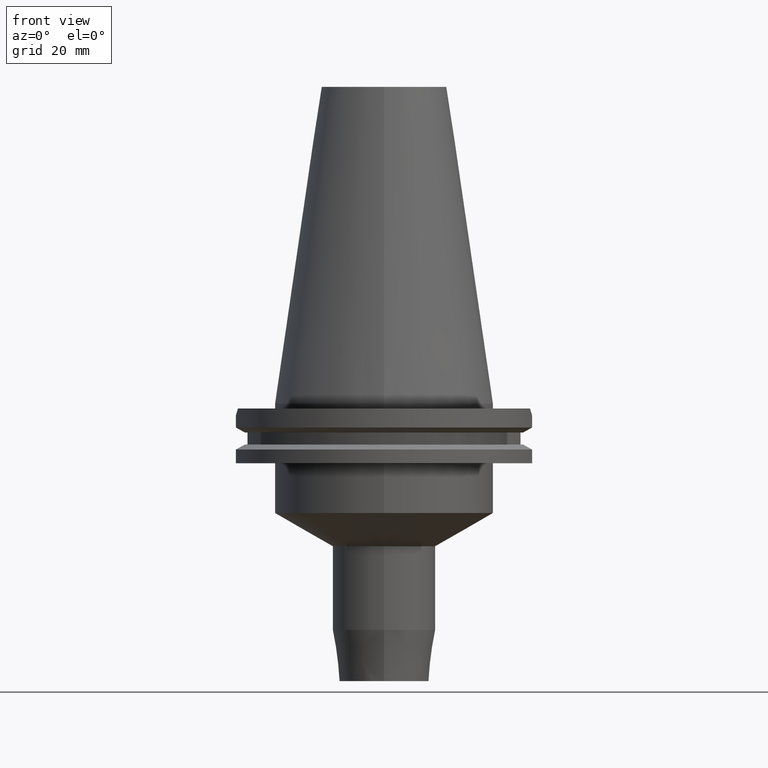
[diagram: clean part render]
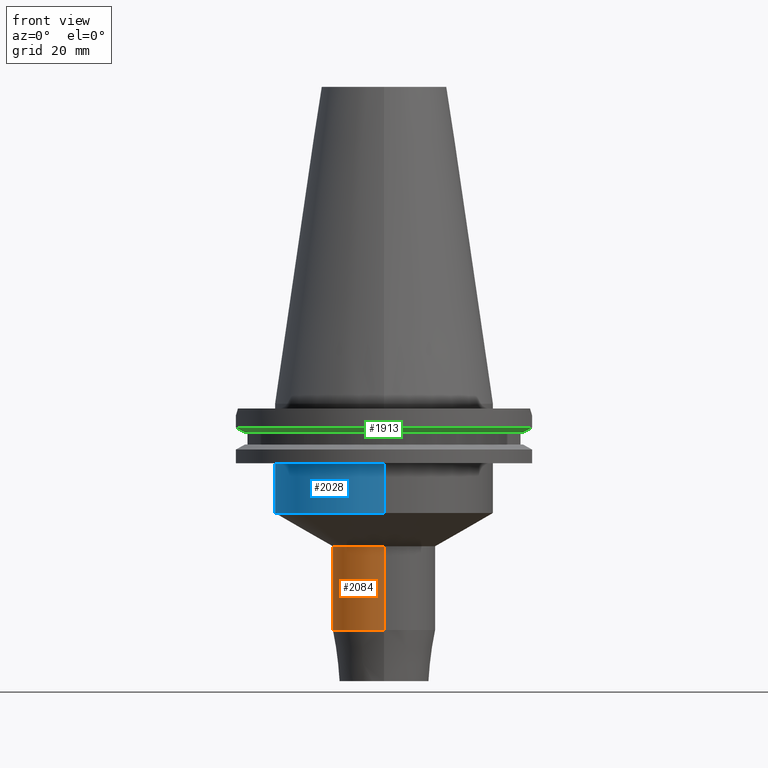
[diagram: same view with three faces highlighted in distinct colors, each labeled with its STEP entity id]
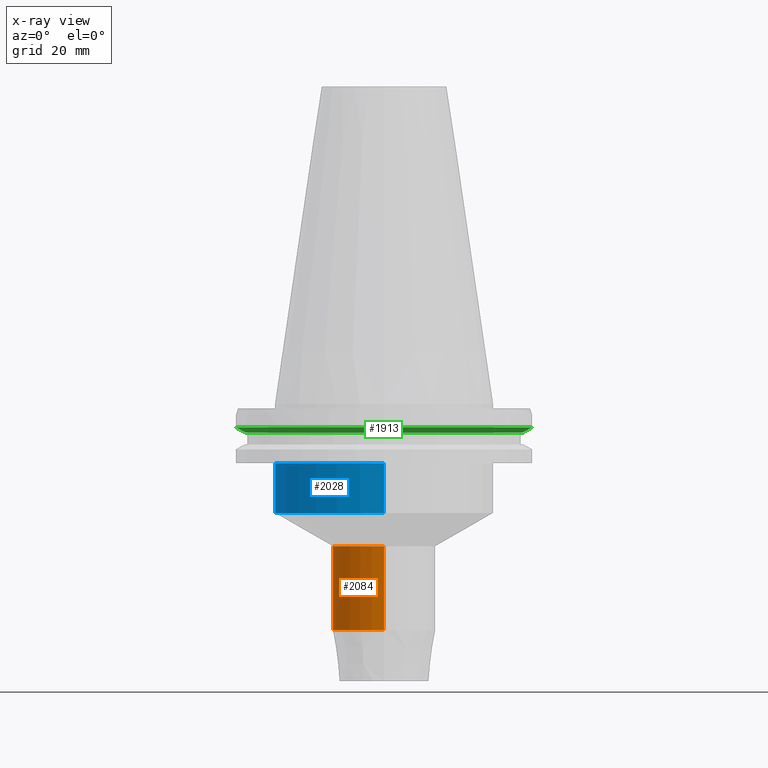
[diagram: x-ray of the same camera — body ghosted, the three highlighted faces saturated]
A machine part, front view with three faces highlighted in distinct colors.
The next image is the same camera in x-ray (body ghosted, the three faces saturated) — at least one of them is partly hidden behind the body in this view.
Their STEP definitions:

[orange] entity #2084 — the highlighted cylindrical surface (partial cylindrical patch) has radius 16.5 mm, axis along (0, 0, -1).
#900=CARTESIAN_POINT('',(0.E0,0.E0,-4.567200794362E1));
#901=DIRECTION('',(0.E0,0.E0,-1.E0));
#902=DIRECTION('',(0.E0,-1.E0,0.E0));
#903=AXIS2_PLACEMENT_3D('',#900,#901,#902);
#908=DIRECTION('',(0.E0,0.E0,-1.E0));
#909=VECTOR('',#908,2.686293982051E1);
#910=CARTESIAN_POINT('',(0.E0,-1.65E1,-4.567200794362E1));
#911=LINE('',#910,#909);
#915=DIRECTION('',(0.E0,0.E0,-1.E0));
#916=VECTOR('',#915,2.686293982051E1);
#917=CARTESIAN_POINT('',(0.E0,1.65E1,-4.567200794362E1));
#918=LINE('',#917,#916);
#937=CARTESIAN_POINT('',(0.E0,0.E0,-7.253494776413E1));
#938=DIRECTION('',(0.E0,0.E0,1.E0));
#939=DIRECTION('',(0.E0,1.E0,0.E0));
#940=AXIS2_PLACEMENT_3D('',#937,#938,#939);
#1264=CARTESIAN_POINT('',(0.E0,1.65E1,-7.253494776413E1));
#1265=VERTEX_POINT('',#1264);
#1266=CARTESIAN_POINT('',(0.E0,-1.65E1,-7.253494776413E1));
#1267=VERTEX_POINT('',#1266);
#1268=CARTESIAN_POINT('',(0.E0,1.65E1,-4.567200794362E1));
#1269=VERTEX_POINT('',#1268);
#1270=CARTESIAN_POINT('',(0.E0,-1.65E1,-4.567200794362E1));
#1271=VERTEX_POINT('',#1270);
#2070=CARTESIAN_POINT('',(0.E0,2.585535554700E-14,1.11125E2));
#2071=DIRECTION('',(0.E0,0.E0,-1.E0));
#2072=DIRECTION('',(0.E0,-1.E0,0.E0));
#2073=AXIS2_PLACEMENT_3D('',#2070,#2071,#2072);
#2074=CYLINDRICAL_SURFACE('',#2073,1.65E1);
#2076=ORIENTED_EDGE('',*,*,#2075,.F.);
#2077=ORIENTED_EDGE('',*,*,#2065,.F.);
#2079=ORIENTED_EDGE('',*,*,#2078,.T.);
#2081=ORIENTED_EDGE('',*,*,#2080,.F.);
#2082=EDGE_LOOP('',(#2076,#2077,#2079,#2081));
#2083=FACE_OUTER_BOUND('',#2082,.F.);
#904=CIRCLE('',#903,1.65E1);
#941=CIRCLE('',#940,1.65E1);
#2065=EDGE_CURVE('',#1271,#1269,#904,.T.);
#2075=EDGE_CURVE('',#1269,#1265,#918,.T.);
#2078=EDGE_CURVE('',#1271,#1267,#911,.T.);
#2080=EDGE_CURVE('',#1265,#1267,#941,.T.);
#2084=ADVANCED_FACE('',(#2083),#2074,.T.);

[blue] entity #2028 — the highlighted cylindrical surface (partial cylindrical patch) has radius 34.925 mm, axis along (0, 0, -1).
#251=CARTESIAN_POINT('',(0.E0,2.585535554700E-14,-1.905E1));
#252=DIRECTION('',(0.E0,0.E0,-1.E0));
#253=DIRECTION('',(0.E0,-1.E0,0.E0));
#254=AXIS2_PLACEMENT_3D('',#251,#252,#253);
#848=DIRECTION('',(0.E0,2.361051096883E-14,-1.E0));
#849=VECTOR('',#848,1.595E1);
#850=CARTESIAN_POINT('',(0.E0,-3.4925E1,-1.905E1));
#851=LINE('',#850,#849);
#855=DIRECTION('',(0.E0,-2.450147364690E-14,-1.E0));
#856=VECTOR('',#855,1.595E1);
#857=CARTESIAN_POINT('',(0.E0,3.4925E1,-1.905E1));
#858=LINE('',#857,#856);
#885=CARTESIAN_POINT('',(0.E0,0.E0,-3.5E1));
#886=DIRECTION('',(0.E0,0.E0,1.E0));
#887=DIRECTION('',(0.E0,1.E0,0.E0));
#888=AXIS2_PLACEMENT_3D('',#885,#886,#887);
#1272=CARTESIAN_POINT('',(0.E0,3.4925E1,-3.5E1));
#1273=VERTEX_POINT('',#1272);
#1274=CARTESIAN_POINT('',(0.E0,-3.4925E1,-3.5E1));
#1275=VERTEX_POINT('',#1274);
#1276=CARTESIAN_POINT('',(0.E0,3.4925E1,-1.905E1));
#1277=VERTEX_POINT('',#1276);
#1278=CARTESIAN_POINT('',(0.E0,-3.4925E1,-1.905E1));
#1279=VERTEX_POINT('',#1278);
#2014=CARTESIAN_POINT('',(0.E0,2.585535554700E-14,1.11125E2));
#2015=DIRECTION('',(0.E0,0.E0,-1.E0));
#2016=DIRECTION('',(0.E0,-1.E0,0.E0));
#2017=AXIS2_PLACEMENT_3D('',#2014,#2015,#2016);
#2018=CYLINDRICAL_SURFACE('',#2017,3.4925E1);
#2020=ORIENTED_EDGE('',*,*,#2019,.F.);
#2021=ORIENTED_EDGE('',*,*,#1565,.F.);
#2023=ORIENTED_EDGE('',*,*,#2022,.T.);
#2025=ORIENTED_EDGE('',*,*,#2024,.F.);
#2026=EDGE_LOOP('',(#2020,#2021,#2023,#2025));
#2027=FACE_OUTER_BOUND('',#2026,.F.);
#255=CIRCLE('',#254,3.4925E1);
#889=CIRCLE('',#888,3.4925E1);
#1565=EDGE_CURVE('',#1279,#1277,#255,.T.);
#2019=EDGE_CURVE('',#1277,#1273,#858,.T.);
#2022=EDGE_CURVE('',#1279,#1275,#851,.T.);
#2024=EDGE_CURVE('',#1273,#1275,#889,.T.);
#2028=ADVANCED_FACE('',(#2027),#2018,.T.);

[green] entity #1913 — the highlighted conical surface has half-angle 60 deg.
#654=CARTESIAN_POINT('',(4.747671146204E1,-1.2955E1,-7.601333230925E0));
#655=CARTESIAN_POINT('',(4.715587471991E1,-1.2955E1,-7.780034925955E0));
#656=CARTESIAN_POINT('',(4.651400683738E1,-1.2955E1,-8.137276542137E0));
#657=CARTESIAN_POINT('',(4.555063729229E1,-1.2955E1,-8.672683119241E0));
#658=CARTESIAN_POINT('',(4.490800201650E1,-1.2955E1,-9.029294823471E0));
#659=CARTESIAN_POINT('',(4.458657636813E1,-1.2955E1,-9.207500000001E0));
#664=CARTESIAN_POINT('',(-4.458657636813E1,-1.2955E1,-9.207500000001E0));
#665=CARTESIAN_POINT('',(-4.490800201650E1,-1.2955E1,-9.029294823466E0));
#666=CARTESIAN_POINT('',(-4.555063729230E1,-1.2955E1,-8.672683119231E0));
#667=CARTESIAN_POINT('',(-4.651400683739E1,-1.2955E1,-8.137276542126E0));
#668=CARTESIAN_POINT('',(-4.715587471992E1,-1.2955E1,-7.780034925951E0));
#669=CARTESIAN_POINT('',(-4.747671146204E1,-1.2955E1,-7.601333230925E0));
#674=CARTESIAN_POINT('',(0.E0,1.121722380079E-14,-7.601333230926E0));
#675=DIRECTION('',(0.E0,0.E0,1.E0));
#676=DIRECTION('',(-9.647287063661E-1,-2.632461264923E-1,0.E0));
#677=AXIS2_PLACEMENT_3D('',#674,#675,#676);
#682=CARTESIAN_POINT('',(0.E0,1.121722380079E-14,-7.601333230926E0));
#683=DIRECTION('',(0.E0,0.E0,1.E0));
#684=DIRECTION('',(0.E0,-1.E0,0.E0));
#685=AXIS2_PLACEMENT_3D('',#682,#683,#684);
#713=CARTESIAN_POINT('',(0.E0,1.121722380079E-14,-9.207500000003E0));
#714=DIRECTION('',(0.E0,0.E0,1.E0));
#715=DIRECTION('',(-9.602855947900E-1,-2.790189535476E-1,0.E0));
#716=AXIS2_PLACEMENT_3D('',#713,#714,#715);
#721=CARTESIAN_POINT('',(0.E0,1.121722380079E-14,-9.207500000003E0));
#722=DIRECTION('',(0.E0,0.E0,1.E0));
#723=DIRECTION('',(0.E0,-1.E0,0.E0));
#724=AXIS2_PLACEMENT_3D('',#721,#722,#723);
#1315=CARTESIAN_POINT('',(4.458657636813E1,-1.2955E1,-9.207500000001E0));
#1316=VERTEX_POINT('',#1315);
#1317=VERTEX_POINT('',#654);
#1334=CARTESIAN_POINT('',(-4.747671146204E1,-1.2955E1,-7.601333230925E0));
#1335=VERTEX_POINT('',#1334);
#1336=VERTEX_POINT('',#664);
#1380=CARTESIAN_POINT('',(-4.240378546272E-14,-4.643053755053E1,
-9.207500000003E0));
#1381=VERTEX_POINT('',#1380);
#1386=CARTESIAN_POINT('',(0.E0,-4.92125E1,-7.601333230926E0));
#1387=VERTEX_POINT('',#1386);
#1898=CARTESIAN_POINT('',(0.E0,1.121722380079E-14,-8.404416615464E0));
#1899=DIRECTION('',(0.E0,0.E0,1.E0));
#1900=DIRECTION('',(0.E0,1.E0,0.E0));
#1901=AXIS2_PLACEMENT_3D('',#1898,#1899,#1900);
#1902=CONICAL_SURFACE('',#1901,4.782151877527E1,6.E1);
#1903=ORIENTED_EDGE('',*,*,#1850,.T.);
#1905=ORIENTED_EDGE('',*,*,#1904,.F.);
#1907=ORIENTED_EDGE('',*,*,#1906,.F.);
#1908=ORIENTED_EDGE('',*,*,#1884,.T.);
#1909=ORIENTED_EDGE('',*,*,#1811,.T.);
#1910=ORIENTED_EDGE('',*,*,#1809,.T.);
#1911=EDGE_LOOP('',(#1903,#1905,#1907,#1908,#1909,#1910));
#1912=FACE_OUTER_BOUND('',#1911,.F.);
#660=B_SPLINE_CURVE_WITH_KNOTS('',3,(#654,#655,#656,#657,#658,#659),
.UNSPECIFIED.,.F.,.F.,(4,1,1,4),(0.E0,3.333333333333E-1,6.666666666667E-1,1.E0),
.UNSPECIFIED.);
#670=B_SPLINE_CURVE_WITH_KNOTS('',3,(#664,#665,#666,#667,#668,#669),
.UNSPECIFIED.,.F.,.F.,(4,1,1,4),(0.E0,3.333333333333E-1,6.666666666667E-1,1.E0),
.UNSPECIFIED.);
#678=CIRCLE('',#677,4.92125E1);
#686=CIRCLE('',#685,4.92125E1);
#717=CIRCLE('',#716,4.643053755053E1);
#725=CIRCLE('',#724,4.643053755053E1);
#1809=EDGE_CURVE('',#1387,#1317,#686,.T.);
#1811=EDGE_CURVE('',#1335,#1387,#678,.T.);
#1850=EDGE_CURVE('',#1317,#1316,#660,.T.);
#1884=EDGE_CURVE('',#1336,#1335,#670,.T.);
#1904=EDGE_CURVE('',#1381,#1316,#725,.T.);
#1906=EDGE_CURVE('',#1336,#1381,#717,.T.);
#1913=ADVANCED_FACE('',(#1912),#1902,.T.);